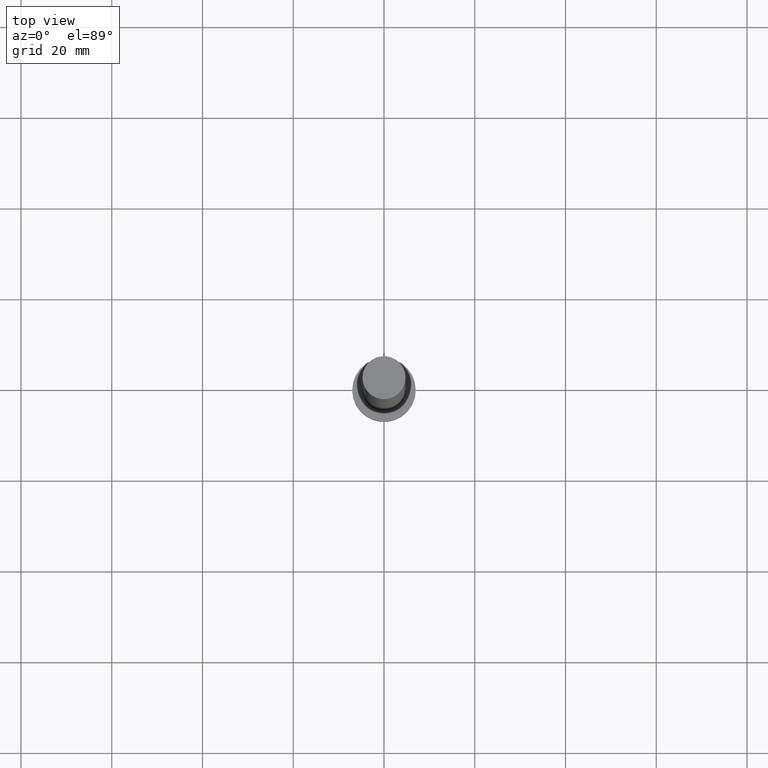
[diagram: clean part render]
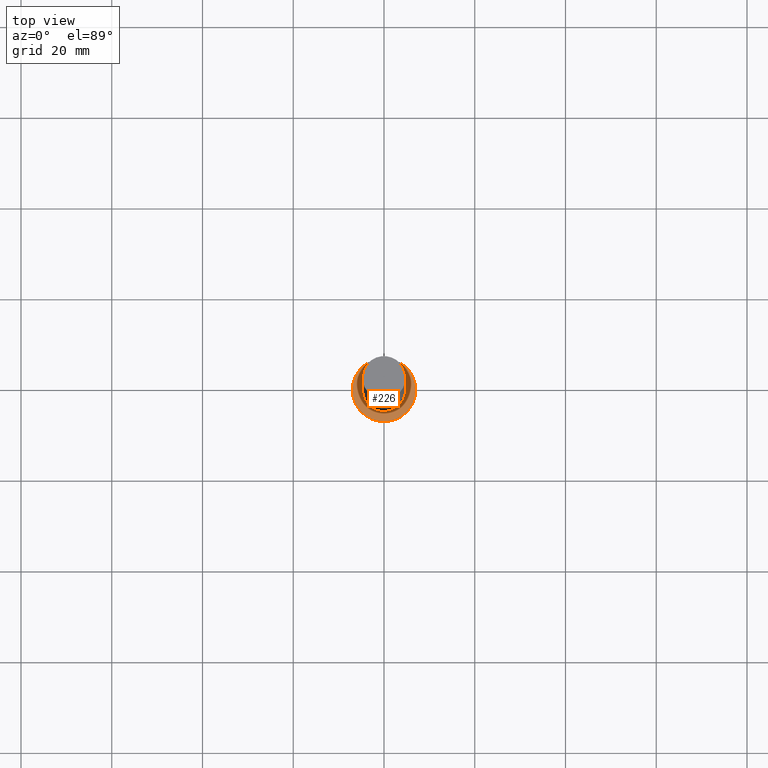
[diagram: same view with one face highlighted and labeled with its STEP entity id]
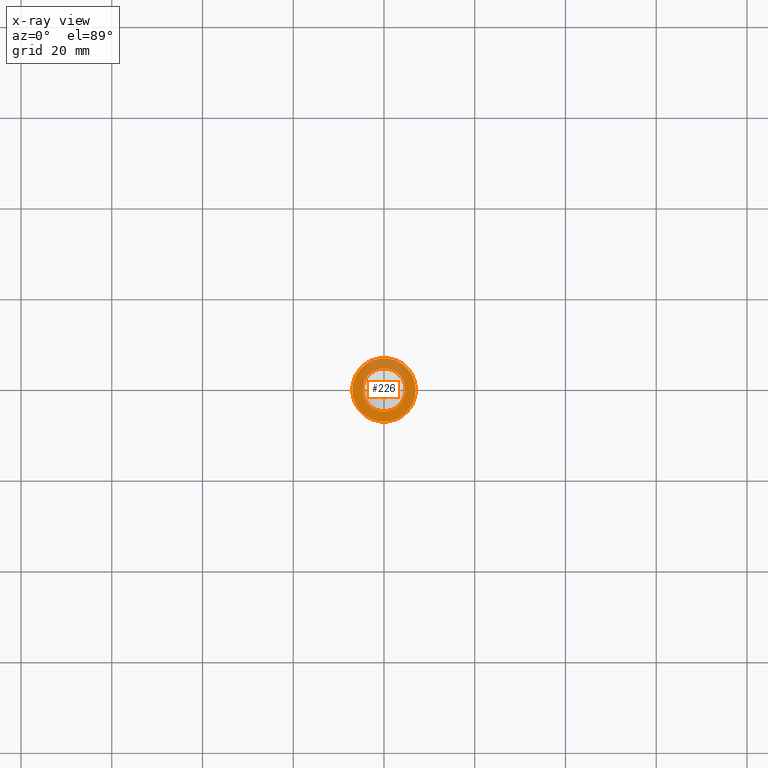
[diagram: x-ray of the same camera — body ghosted, the highlighted face saturated]
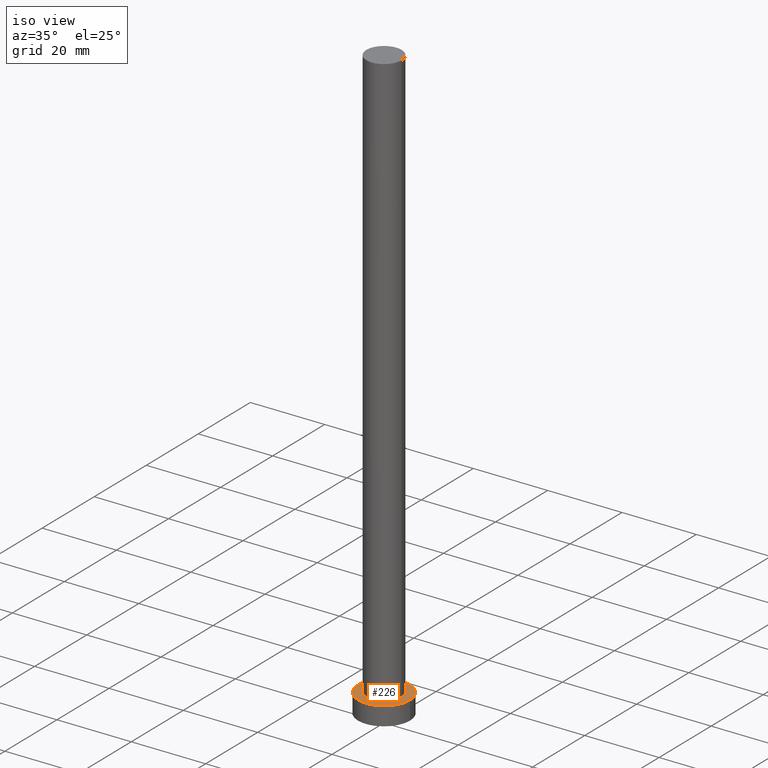
[diagram: same view with one face highlighted and labeled with its STEP entity id]
A machine part, top view. The second image highlights one B-rep face of the part: STEP entity #226.
The next image is the same camera in x-ray: the body ghosted, the highlighted face saturated — about 29% of this face is hidden behind the body in this view.
A second angle (iso view) of the same face is appended — the face is thin or edge-on in the first view.
In plain terms, the highlighted planar face has unit normal (0, 0, 1).
Its self-contained STEP definition (entity closure, byte-faithful):
#6 = ORIENTED_EDGE ( 'NONE', *, *, #218, .T. ) ;
#8 = EDGE_LOOP ( 'NONE', ( #59, #214 ) ) ;
#12 = VERTEX_POINT ( 'NONE', #219 ) ;
#24 = AXIS2_PLACEMENT_3D ( 'NONE', #139, #62, #221 ) ;
#39 = DIRECTION ( 'NONE',  ( 1.000000000000000000, 0.000000000000000000, 0.000000000000000000 ) ) ;
#43 = FACE_BOUND ( 'NONE', #8, .T. ) ;
#47 = AXIS2_PLACEMENT_3D ( 'NONE', #120, #103, #115 ) ;
#50 = EDGE_CURVE ( 'NONE', #110, #96, #203, .T. ) ;
#52 = AXIS2_PLACEMENT_3D ( 'NONE', #224, #121, #64 ) ;
#53 = CARTESIAN_POINT ( 'NONE',  ( -4.750000000000000888, 0.000000000000000000, 5.000000000000000000 ) ) ;
#54 = AXIS2_PLACEMENT_3D ( 'NONE', #138, #220, #39 ) ;
#56 = EDGE_CURVE ( 'NONE', #192, #12, #229, .T. ) ;
#59 = ORIENTED_EDGE ( 'NONE', *, *, #208, .F. ) ;
#62 = DIRECTION ( 'NONE',  ( 0.000000000000000000, 0.000000000000000000, 1.000000000000000000 ) ) ;
#64 = DIRECTION ( 'NONE',  ( 1.000000000000000000, 0.000000000000000000, 0.000000000000000000 ) ) ;
#96 = VERTEX_POINT ( 'NONE', #53 ) ;
#103 = DIRECTION ( 'NONE',  ( 0.000000000000000000, 0.000000000000000000, 1.000000000000000000 ) ) ;
#104 = FACE_OUTER_BOUND ( 'NONE', #158, .T. ) ;
#106 = DIRECTION ( 'NONE',  ( 1.000000000000000000, 0.000000000000000000, -0.000000000000000000 ) ) ;
#110 = VERTEX_POINT ( 'NONE', #147 ) ;
#115 = DIRECTION ( 'NONE',  ( 1.000000000000000000, 0.000000000000000000, 0.000000000000000000 ) ) ;
#120 = CARTESIAN_POINT ( 'NONE',  ( 0.000000000000000000, 0.000000000000000000, 5.000000000000000000 ) ) ;
#121 = DIRECTION ( 'NONE',  ( 0.000000000000000000, 0.000000000000000000, 1.000000000000000000 ) ) ;
#131 = ORIENTED_EDGE ( 'NONE', *, *, #56, .T. ) ;
#138 = CARTESIAN_POINT ( 'NONE',  ( 0.000000000000000000, 0.000000000000000000, 5.000000000000000000 ) ) ;
#139 = CARTESIAN_POINT ( 'NONE',  ( 0.000000000000000000, 0.000000000000000000, 5.000000000000000000 ) ) ;
#145 = CARTESIAN_POINT ( 'NONE',  ( 0.000000000000000000, 0.000000000000000000, 5.000000000000000000 ) ) ;
#147 = CARTESIAN_POINT ( 'NONE',  ( 4.750000000000000888, 5.817072295949928412E-16, 5.000000000000000000 ) ) ;
#157 = CIRCLE ( 'NONE', #54, 4.750000000000000888 ) ;
#158 = EDGE_LOOP ( 'NONE', ( #131, #6 ) ) ;
#159 = PLANE ( 'NONE',  #166 ) ;
#166 = AXIS2_PLACEMENT_3D ( 'NONE', #145, #199, #106 ) ;
#192 = VERTEX_POINT ( 'NONE', #204 ) ;
#199 = DIRECTION ( 'NONE',  ( 0.000000000000000000, 0.000000000000000000, 1.000000000000000000 ) ) ;
#203 = CIRCLE ( 'NONE', #52, 4.750000000000000888 ) ;
#204 = CARTESIAN_POINT ( 'NONE',  ( -7.000000000000000000, 0.000000000000000000, 5.000000000000000000 ) ) ;
#208 = EDGE_CURVE ( 'NONE', #96, #110, #157, .T. ) ;
#214 = ORIENTED_EDGE ( 'NONE', *, *, #50, .F. ) ;
#218 = EDGE_CURVE ( 'NONE', #12, #192, #232, .T. ) ;
#219 = CARTESIAN_POINT ( 'NONE',  ( 7.000000000000000000, 8.572527594031473190E-16, 5.000000000000000000 ) ) ;
#220 = DIRECTION ( 'NONE',  ( 0.000000000000000000, 0.000000000000000000, 1.000000000000000000 ) ) ;
#221 = DIRECTION ( 'NONE',  ( 1.000000000000000000, 0.000000000000000000, 0.000000000000000000 ) ) ;
#224 = CARTESIAN_POINT ( 'NONE',  ( 0.000000000000000000, 0.000000000000000000, 5.000000000000000000 ) ) ;
#226 = ADVANCED_FACE ( 'NONE', ( #43, #104 ), #159, .T. ) ;
#229 = CIRCLE ( 'NONE', #24, 7.000000000000000000 ) ;
#232 = CIRCLE ( 'NONE', #47, 7.000000000000000000 ) ;